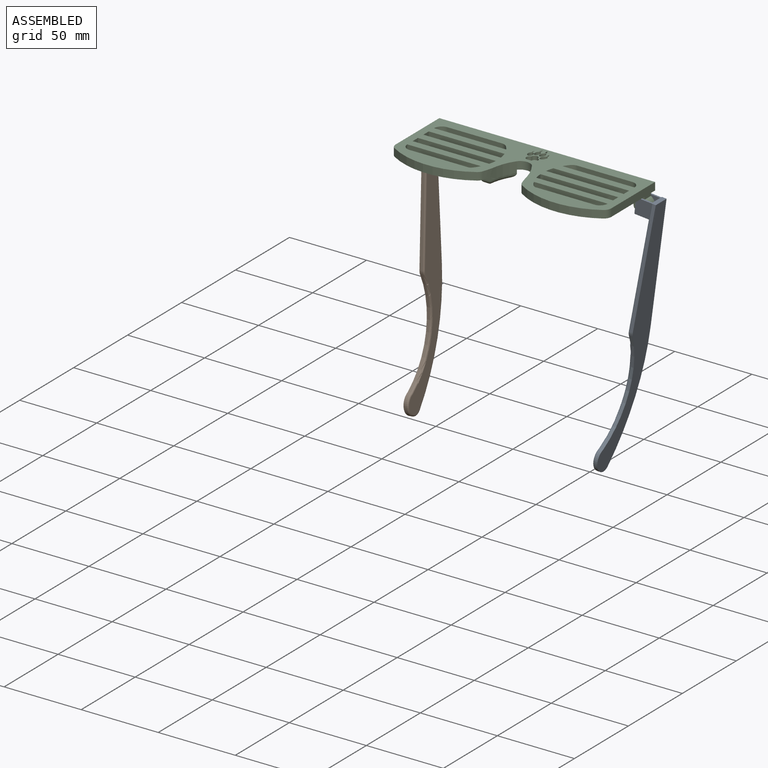
[diagram: assembled view]
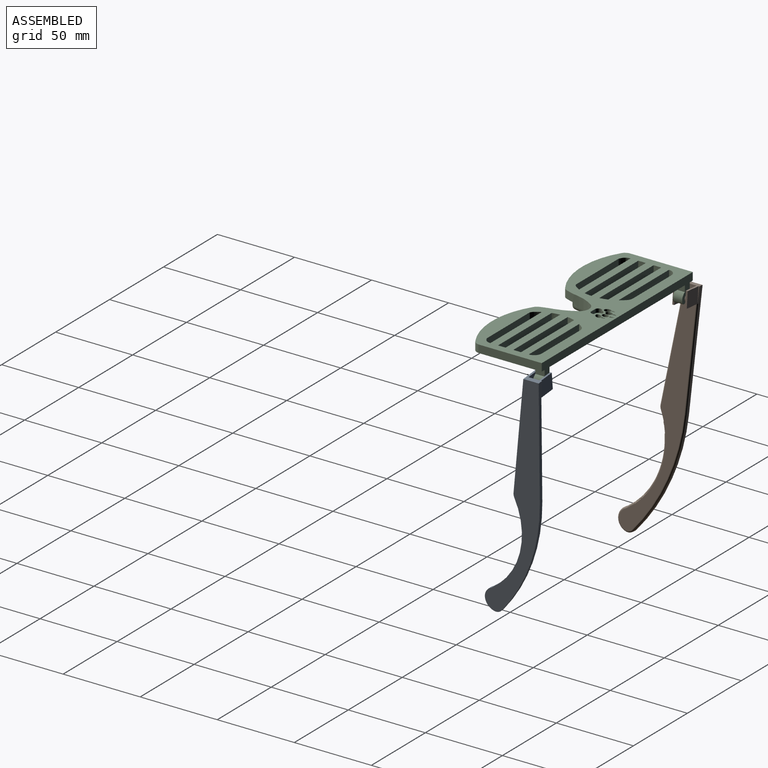
[diagram: assembled view, second angle]
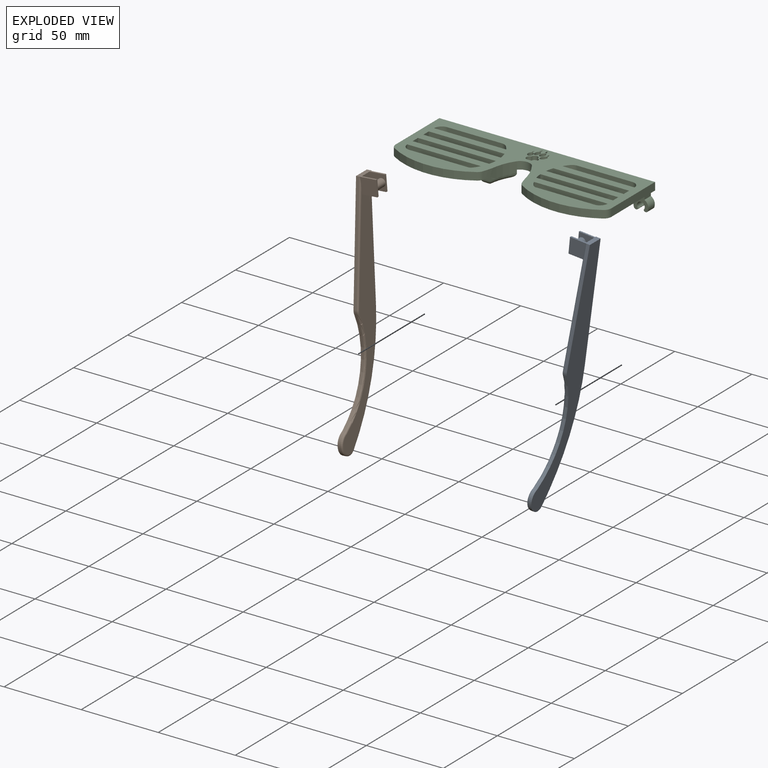
[diagram: exploded view]
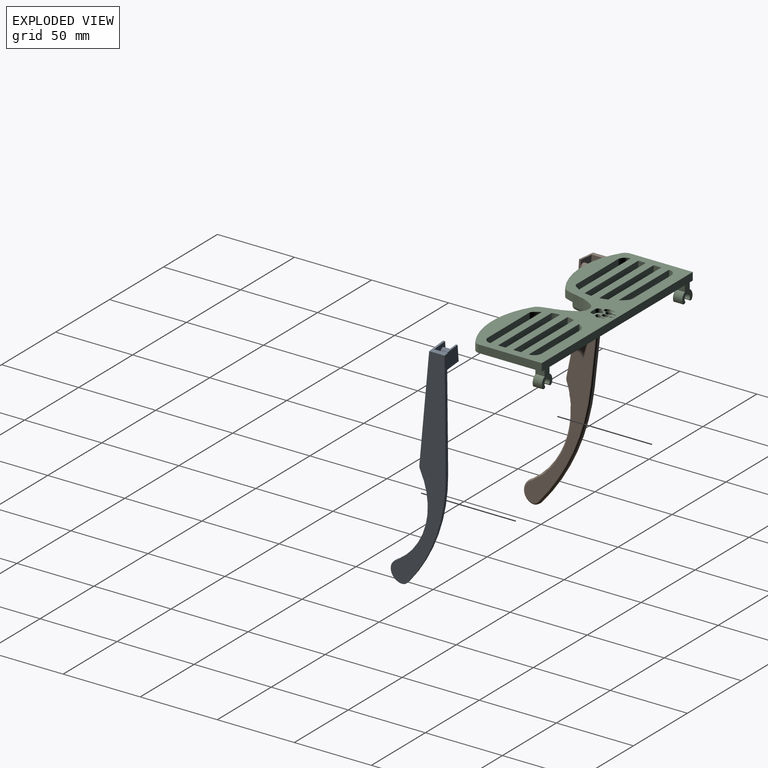
[diagram: exploded view, second angle]
ASSEMBLY  parts=3 mates=2
PART A: 37 faces, bbox 155x51x13 mm
  f0: plane 149.14x42mm, normal (0,0,-1), area 1534mm2, adj f3,f22,f23,f25,f26,f27,f29,f30
  f1: plane 10.01x0.58mm, normal (0,0,-1), area 2.9mm2, adj f3,f9,f21
  f2: plane 1.29x0.04mm, normal (1,0,0), area 0.1mm2, adj f10,f15,f18,f19
  f3: plane 13x10mm, normal (-1,0,0), area 54.2mm2, adj f0,f1,f4,f5,f9,f10,f14,f15
  f4: plane 10.01x0.58mm, normal (0,0,1), area 2.9mm2, adj f3,f9,f14
  f5: plane 72.9x11.29mm, normal (-0.15,-0.99,0), area 147.5mm2, adj f3,f10,f11,f29
  f6: cylinder r=50.09mm len=60.28mm, axis (0,0,-1), area 136.5mm2, adj f10,f11,f13,f31
  f7: cylinder r=7.35mm len=13.77mm, axis (0,0,-1), area 36mm2, adj f10,f12,f13,f33
  f8: cylinder r=123.65mm len=73.53mm, axis (0,0,-1), area 161.5mm2, adj f9,f10,f12,f35
  f9: plane 74.88x4.33mm, normal (0.06,1,0), area 160mm2, adj f1,f3,f4,f8,f10,f23,f36
  f10: plane 150.14x44.01mm, normal (0,0,1), area 1844mm2, adj f2,f3,f5,f6,f7,f8,f9,f11
  f11: cylinder r=5mm len=2.63mm, axis (0,0,-1), area 5.4mm2, adj f5,f6,f10,f30
  f12: cylinder r=5mm len=5.09mm, axis (0,0,-1), area 11.2mm2, adj f7,f8,f10,f34
  f13: cylinder r=5mm len=2mm, axis (0,0,-1), area 1.6mm2, adj f6,f7,f10,f32
  f14: plane 10.01x0.04mm, normal (0,1,0), area 0.4mm2, adj f3,f4,f16,f20
  f15: plane 10.01x0.04mm, normal (0,-1,0), area 0.4mm2, adj f2,f3,f10,f19
  f16: plane 1.13x0.04mm, normal (1,0,0), area 0mm2, adj f10,f14,f17,f20
  f17: plane 10.01x0.04mm, normal (0,-1,0), area 0.4mm2, adj f3,f10,f16,f20
  f18: plane 10.01x0.04mm, normal (0,1,0), area 0.4mm2, adj f2,f3,f10,f19
  f19: plane 10.01x1.29mm, normal (0,0,1), area 12.9mm2, adj f2,f3,f15,f18
  f20: plane 10.01x1.13mm, normal (0,0,1), area 11.3mm2, adj f3,f14,f16,f17
  f21: plane 10.01x9.96mm, normal (0,1,0), area 99.7mm2, adj f1,f3,f23,f24
  f22: plane 10.01x9.96mm, normal (0,-1,0), area 80.1mm2, adj f0,f3,f23,f24,f28
  f23: plane 10.96x1.13mm, normal (1,0,0), area 11.5mm2, adj f0,f9,f21,f22,f24,f36
  f24: plane 10.01x9.42mm, normal (0,0,-1), area 25.8mm2, adj f3,f21,f22,f23,f25,f26,f27,f28
  f25: plane 10.01x9.96mm, normal (0,1,0), area 80.1mm2, adj f0,f3,f24,f27,f28
  f26: plane 10.96x10.01mm, normal (0,-1,0), area 101.1mm2, adj f0,f3,f24,f27,f29
  f27: plane 9.96x1.29mm, normal (1,0,0), area 12.8mm2, adj f0,f24,f25,f26
  f28: cylinder r=2.5mm len=7mm, axis (0,-1,0), area 108.4mm2, adj f22,f24,f25
  f29: cylinder r=1mm len=73.05mm, axis (0.99,-0.15,0), area 112.2mm2, adj f0,f5,f26,f30
  f30: torus R=4mm, axis (0,0,1), area 3.9mm2, adj f0,f11,f29,f31
  f31: torus R=51.09mm, axis (0,0,1), area 108mm2, adj f0,f6,f30,f32
  f32: torus R=6mm, axis (0,0,1), area 1.3mm2, adj f0,f13,f31,f33
  f33: torus R=6.35mm, axis (0,0,1), area 26.8mm2, adj f0,f7,f32,f34
  f34: torus R=4mm, axis (0,0,1), area 8.2mm2, adj f0,f12,f33,f35
  f35: torus R=122.65mm, axis (0,0,1), area 126.4mm2, adj f0,f8,f34,f36
  f36: cylinder r=1mm len=64.92mm, axis (-1,0.06,0), area 102mm2, adj f0,f9,f23,f35
PART B: 28 faces, bbox 155x51x13 mm
  f0: plane 11x1.19mm, normal (1,0,0), area 12.2mm2, adj f7,f8,f13,f16,f18,f20
  f1: plane 13x10mm, normal (-1,0,0), area 54.2mm2, adj f2,f3,f7,f8,f9,f13,f14,f16
  f2: plane 10.02x0.58mm, normal (0,0,1), area 2.9mm2, adj f1,f7,f13
  f3: plane 72.9x11.29mm, normal (-0.15,-0.99,0), area 147.5mm2, adj f1,f9,f10,f21
  f4: cylinder r=50.09mm len=60.28mm, axis (0,0,-1), area 136.5mm2, adj f9,f10,f12,f25
  f5: cylinder r=7.35mm len=13.77mm, axis (0,0,-1), area 36mm2, adj f9,f11,f12,f26
  f6: cylinder r=123.65mm len=73.53mm, axis (0,0,-1), area 161.5mm2, adj f7,f9,f11,f22
  f7: plane 74.88x4.33mm, normal (0.06,1,0), area 160mm2, adj f0,f1,f2,f6,f9,f20
  f8: plane 149.14x42mm, normal (0,0,1), area 1534mm2, adj f0,f1,f14,f15,f17,f18,f20,f21
  f9: plane 150.14x44.58mm, normal (0,0,-1), area 1871.1mm2, adj f1,f3,f4,f5,f6,f7,f10,f11
  f10: cylinder r=5mm len=2.63mm, axis (0,0,-1), area 5.4mm2, adj f3,f4,f9,f23
  f11: cylinder r=5mm len=5.09mm, axis (0,0,-1), area 11.2mm2, adj f5,f6,f9,f24
  f12: cylinder r=5mm len=2mm, axis (0,0,-1), area 1.6mm2, adj f4,f5,f9,f27
  f13: plane 10.02x10mm, normal (0,1,0), area 100.2mm2, adj f0,f1,f2,f16
  f14: plane 11x10.02mm, normal (0,-1,0), area 101.6mm2, adj f1,f8,f15,f16,f21
  f15: plane 10x1.23mm, normal (1,0,0), area 12.3mm2, adj f8,f14,f16,f17
  f16: plane 10.02x9.42mm, normal (0,0,1), area 25.7mm2, adj f0,f1,f13,f14,f15,f17,f18,f19
  f17: plane 10.02x10mm, normal (0,1,0), area 80.6mm2, adj f1,f8,f15,f16,f19
  f18: plane 10.02x10mm, normal (0,-1,0), area 80.6mm2, adj f0,f1,f8,f16,f19
  f19: cylinder r=2.5mm len=7mm, axis (0,-1,0), area 108.5mm2, adj f16,f17,f18
  f20: cylinder r=1mm len=64.91mm, axis (1,-0.06,0), area 102mm2, adj f0,f7,f8,f22
  f21: cylinder r=1mm len=73.05mm, axis (-0.99,0.15,0), area 112.2mm2, adj f3,f8,f14,f23
  f22: torus R=122.65mm, axis (0,0,1), area 126.4mm2, adj f6,f8,f20,f24
  f23: torus R=4mm, axis (0,0,1), area 3.9mm2, adj f8,f10,f21,f25
  f24: torus R=4mm, axis (0,0,1), area 8.2mm2, adj f8,f11,f22,f26
  f25: torus R=51.09mm, axis (0,0,1), area 108mm2, adj f4,f8,f23,f27
  f26: torus R=6.35mm, axis (0,0,1), area 26.8mm2, adj f5,f8,f24,f27
  f27: torus R=6mm, axis (0,0,1), area 1.3mm2, adj f8,f12,f25,f26
PART C: 125 faces, bbox 140x52x15.9 mm
  f0: cylinder r=5mm len=5mm, axis (0,0,-1), area 12.2mm2, adj f7,f10,f12,f124
  f1: cylinder r=50mm len=5mm, axis (0,0,1), area 5.6mm2, adj f10,f12,f88,f123
  f2: plane 5x4.91mm, normal (-1,0,0), area 24.6mm2, adj f10,f12,f118,f122
  f3: cylinder r=25mm len=19.92mm, axis (0,0,1), area 127.2mm2, adj f10,f12,f92,f93,f101,f103,f105,f114
  f4: plane 5x4.91mm, normal (1,0,0), area 24.6mm2, adj f10,f12,f116,f120
  f5: cylinder r=25mm len=23.39mm, axis (0,0,1), area 147.9mm2, adj f10,f12,f89,f90,f95,f96,f98,f108
  f6: plane 5x5mm, normal (-1,0,0), area 25mm2, adj f10,f12,f114,f117
  f7: cylinder r=25mm len=5mm, axis (0,0,1), area 20.7mm2, adj f0,f10,f12,f121
  f8: plane 5x5mm, normal (1,0,0), area 25mm2, adj f10,f12,f112,f115
  f9: cylinder r=25mm len=5mm, axis (0,0,1), area 20.9mm2, adj f10,f12,f110,f113
  f10: plane 140x52.04mm, normal (0,0,-1), area 5011mm2, adj f0,f1,f2,f3,f4,f5,f6,f7
  f11: cylinder r=50.26mm len=9.2mm, axis (0,0,1), area 56.7mm2, adj f10,f12,f76,f79,f90,f100
  f12: plane 140x52.04mm, normal (0,0,1), area 4310.9mm2, adj f0,f1,f2,f3,f4,f5,f6,f7
  f13: cylinder r=50.26mm len=7.63mm, axis (0,0,1), area 45.4mm2, adj f10,f12,f75,f77,f93,f106
  f14: cylinder r=2.5mm len=6mm, axis (0,1,0), area 71.7mm2, adj f20,f21,f30,f34
  f15: cylinder r=4.83mm len=6.11mm, axis (0,1,0), area 42.8mm2, adj f16,f20,f30,f34
  f16: plane 6x0.05mm, normal (0,0,-1), area 0.3mm2, adj f15,f17,f30,f34
  f17: plane 6x3.89mm, normal (1,0,0), area 23.4mm2, adj f10,f16,f30,f34
  f18: cylinder r=4.83mm len=6.11mm, axis (0,1,0), area 42.8mm2, adj f19,f21,f30,f34
  f19: plane 6x3.89mm, normal (-1,0,0), area 23.4mm2, adj f10,f18,f30,f34
  f20: cylinder r=1.5mm len=6mm, axis (0,1,0), area 21.2mm2, adj f14,f15,f30,f34
  f21: cylinder r=1.5mm len=6mm, axis (0,1,0), area 21.2mm2, adj f14,f18,f30,f34
  f22: cylinder r=2.5mm len=6mm, axis (0,1,0), area 71mm2, adj f28,f29,f30,f33
  f23: cylinder r=4.78mm len=6.01mm, axis (0,1,0), area 42.2mm2, adj f24,f29,f30,f33
  f24: plane 6x0.11mm, normal (0,0,-1), area 0.6mm2, adj f23,f25,f30,f33
  f25: plane 6x3.99mm, normal (1,0,0), area 23.9mm2, adj f10,f24,f30,f33
  f26: cylinder r=4.78mm len=6.01mm, axis (0,1,0), area 42.2mm2, adj f27,f28,f30,f33
  f27: plane 6x3.99mm, normal (-1,0,0), area 23.9mm2, adj f10,f26,f30,f33
  f28: cylinder r=1.5mm len=6mm, axis (0,1,0), area 19.9mm2, adj f22,f26,f30,f33
  f29: cylinder r=1.5mm len=6mm, axis (0,1,0), area 19.9mm2, adj f22,f23,f30,f33
  f30: plane 140x15.92mm, normal (0,1,0), area 809.9mm2, adj f10,f12,f14,f15,f16,f17,f18,f19
  f31: plane 40.51x5mm, normal (-1,0,0), area 202.5mm2, adj f10,f12,f30,f80
  f32: plane 40.51x5mm, normal (1,0,0), area 202.5mm2, adj f10,f12,f30,f78
  f33: plane 10.83x9.56mm, normal (0,-1,0), area 54.3mm2, adj f10,f22,f23,f24,f25,f26,f27,f28
  f34: plane 10.92x9.67mm, normal (0,-1,0), area 55.6mm2, adj f10,f14,f15,f16,f17,f18,f19,f20
  f35: cylinder r=2.24mm len=4.27mm, axis (0,0,1), area 14.2mm2, adj f12,f36,f38,f39
  f36: cylinder r=2.16mm len=4.31mm, axis (0,0,1), area 16.6mm2, adj f12,f35,f37,f39
  f37: cylinder r=2.17mm len=4.27mm, axis (0,0,1), area 15.3mm2, adj f12,f36,f38,f39
  f38: plane 4.24x2.5mm, normal (0,1,0), area 10.6mm2, adj f12,f35,f37,f39
  f39: plane 7.66x6.35mm, normal (0,0,1), area 36mm2, adj f35,f36,f37,f38
  f40: cylinder r=0.96mm len=2.5mm, axis (0,0,1), area 2.7mm2, adj f12,f41,f43,f44
  f41: cylinder r=5.16mm len=2.5mm, axis (0,0,1), area 5.5mm2, adj f12,f40,f42,f44
  f42: cylinder r=0.18mm len=2.5mm, axis (0,0,1), area 1.4mm2, adj f12,f41,f43,f44
  f43: cylinder r=6.23mm len=2.5mm, axis (0,0,1), area 4.8mm2, adj f12,f40,f42,f44
  f44: plane 2.28x1.01mm, normal (0,0,1), area 1.4mm2, adj f40,f41,f42,f43
  f45: cylinder r=4.12mm len=2.5mm, axis (0,0,1), area 6.7mm2, adj f12,f46,f48,f49
  f46: cylinder r=0.15mm len=2.5mm, axis (0,0,1), area 1mm2, adj f12,f45,f47,f49
  f47: cylinder r=8.79mm len=2.5mm, axis (0,0,1), area 6mm2, adj f12,f46,f48,f49
  f48: cylinder r=1.15mm len=2.5mm, axis (0,0,1), area 3.2mm2, adj f12,f45,f47,f49
  f49: plane 2.6x1.33mm, normal (0,0,1), area 2mm2, adj f45,f46,f47,f48
  f50: cylinder r=0.12mm len=2.5mm, axis (0,0,1), area 1.1mm2, adj f12,f51,f53,f54
  f51: cylinder r=3.89mm len=2.5mm, axis (0,0,1), area 5mm2, adj f12,f50,f52,f54
  f52: cylinder r=0.96mm len=2.5mm, axis (0,0,1), area 1.8mm2, adj f12,f51,f53,f54
  f53: cylinder r=4.89mm len=2.5mm, axis (0,0,1), area 4.5mm2, adj f12,f50,f52,f54
  f54: plane 2.08x0.73mm, normal (0,0,1), area 0.9mm2, adj f50,f51,f52,f53
  f55: cylinder r=7.07mm len=2.5mm, axis (0,0,1), area 5.1mm2, adj f12,f56,f58,f59
  f56: cylinder r=0.16mm len=2.5mm, axis (0,0,1), area 1mm2, adj f12,f55,f57,f59
  f57: cylinder r=3.58mm len=2.5mm, axis (0,0,1), area 6mm2, adj f12,f56,f58,f59
  f58: cylinder r=0.92mm len=2.5mm, axis (0,0,1), area 2.7mm2, adj f12,f55,f57,f59
  f59: plane 2.28x1.03mm, normal (0,0,1), area 1.5mm2, adj f55,f56,f57,f58
  f60: extruded ~4.41x3.31mm, area 30.5mm2, adj f12,f61
  f61: plane 4.42x3.31mm, normal (0,0,1), area 11.4mm2, adj f60
  f62: extruded ~4.35x3.42mm, area 30.5mm2, adj f12,f63
  f63: plane 4.37x3.42mm, normal (0,0,1), area 11.2mm2, adj f62
  f64: extruded ~4.62x3.08mm, area 30.5mm2, adj f12,f65
  f65: plane 4.62x3.08mm, normal (0,0,1), area 11.2mm2, adj f64
  f66: extruded ~4.4x3.12mm, area 29.8mm2, adj f12,f67
  f67: plane 4.42x3.12mm, normal (0,0,1), area 10.7mm2, adj f66
  f68: cylinder r=50mm len=52.92mm, axis (0,0,1), area 278.9mm2, adj f10,f12,f77,f78
  f69: cylinder r=50mm len=52.88mm, axis (0,0,1), area 278.6mm2, adj f10,f12,f79,f80
  f70: cylinder r=30mm len=11.47mm, axis (0,0,1), area 88.6mm2, adj f12,f73,f76,f89,f97
  f71: cylinder r=6.37mm len=7.48mm, axis (0,0,1), area 40mm2, adj f10,f12,f73,f74
  f72: cylinder r=41.89mm len=12.9mm, axis (0,0,1), area 99.4mm2, adj f12,f74,f75,f92,f102
  f73: cylinder r=5mm len=5mm, axis (0,0,-1), area 6.6mm2, adj f10,f12,f70,f71
  f74: cylinder r=5mm len=5mm, axis (0,0,-1), area 10mm2, adj f10,f12,f71,f72
  f75: cylinder r=5mm len=7mm, axis (0,0,1), area 1.9mm2, adj f12,f13,f72,f104
  f76: cylinder r=5mm len=7mm, axis (0,0,1), area 1.5mm2, adj f11,f12,f70,f99
  f77: cylinder r=5mm len=5mm, axis (0,0,1), area 16.1mm2, adj f10,f12,f13,f68
  f78: cylinder r=5mm len=5mm, axis (0,0,1), area 25.6mm2, adj f10,f12,f32,f68
  f79: cylinder r=5mm len=5mm, axis (0,0,1), area 16.2mm2, adj f10,f11,f12,f69
  f80: cylinder r=5mm len=5mm, axis (0,0,1), area 25.6mm2, adj f10,f12,f31,f69
  f81: cylinder r=50mm len=5mm, axis (0,0,1), area 5.6mm2, adj f10,f12,f85,f124
  f82: plane 5x0mm, normal (-1,0,0), area 0mm2, adj f10,f12,f85,f121
  f83: plane 35.54x5mm, normal (0,-1,0), area 177.7mm2, adj f10,f12,f86,f110
  f84: plane 35.5x5mm, normal (0,-1,0), area 177.5mm2, adj f10,f12,f87,f109
  f85: cylinder r=5mm len=5mm, axis (0,0,1), area 28.5mm2, adj f10,f12,f81,f82
  f86: cylinder r=5mm len=5mm, axis (0,0,1), area 39.3mm2, adj f10,f12,f83,f113
  f87: cylinder r=5mm len=5mm, axis (0,0,1), area 39.3mm2, adj f10,f12,f84,f111
  f88: cylinder r=5mm len=5mm, axis (0,0,1), area 28.5mm2, adj f1,f10,f12,f119
  f89: plane 9.72x2mm, normal (0,1,0), area 19.4mm2, adj f5,f10,f70,f95
  f90: plane 6.07x2mm, normal (0,-1,0), area 12.1mm2, adj f5,f10,f11,f98
  f91: plane 10.06x3.99mm, normal (0,0,-1), area 21.4mm2, adj f95,f96,f97,f98,f99,f100
  f92: plane 10.08x2mm, normal (-0.01,1,0), area 20.2mm2, adj f3,f10,f72,f101
  f93: plane 6.07x2mm, normal (0,-1,0), area 12.1mm2, adj f3,f10,f13,f105
  f94: plane 10.04x4.47mm, normal (0,0,-1), area 24.2mm2, adj f101,f102,f103,f104,f105,f106
  f95: cylinder r=3mm len=9.72mm, axis (-1,0,0), area 35.6mm2, adj f5,f89,f91,f96,f97
  f96: cylinder r=3mm len=12.82mm, axis (0,-1,0), area 6.9mm2, adj f5,f91,f95,f98
  f97: torus R=33mm, axis (0,0,-1), area 49.2mm2, adj f70,f91,f95,f99
  f98: cylinder r=3mm len=6.07mm, axis (1,0,0), area 19.4mm2, adj f5,f90,f91,f96,f100
  f99: torus R=8mm, axis (0,0,-1), area 1.3mm2, adj f76,f91,f97,f100
  f100: torus R=47.26mm, axis (0,0,-1), area 15mm2, adj f11,f91,f98,f99
  f101: cylinder r=3mm len=10.11mm, axis (-1,-0.01,0), area 37.6mm2, adj f3,f92,f94,f102,f103
  f102: torus R=44.89mm, axis (0,0,-1), area 56.4mm2, adj f72,f94,f101,f104
  f103: cylinder r=3mm len=12.8mm, axis (0,1,0), area 6.8mm2, adj f3,f94,f101,f105
  f104: torus R=8mm, axis (0,0,-1), area 1.5mm2, adj f75,f94,f102,f106
  f105: cylinder r=3mm len=6.07mm, axis (1,0,0), area 19.4mm2, adj f3,f93,f94,f103,f106
  f106: torus R=47.26mm, axis (0,0,-1), area 9.3mm2, adj f13,f94,f104,f105
  f107: cylinder r=25mm len=5mm, axis (0,0,1), area 20.9mm2, adj f10,f12,f109,f111
  f108: cylinder r=5mm len=5mm, axis (0,0,1), area 12.2mm2, adj f5,f10,f12,f123
  f109: cylinder r=5mm len=5mm, axis (0,0,1), area 21mm2, adj f10,f12,f84,f107
  f110: cylinder r=5mm len=5mm, axis (0,0,1), area 21mm2, adj f9,f10,f12,f83
  f111: plane 46.74x5mm, normal (0,1,0), area 233.7mm2, adj f10,f12,f87,f107
  f112: plane 49.15x5mm, normal (0,-1,0), area 245.8mm2, adj f5,f8,f10,f12
  f113: plane 46.77x5mm, normal (0,1,0), area 233.9mm2, adj f9,f10,f12,f86
  f114: plane 49.19x5mm, normal (0,-1,0), area 246mm2, adj f3,f6,f10,f12
  f115: plane 50.36x5mm, normal (0,1,0), area 251.8mm2, adj f5,f8,f10,f12
  f116: plane 50.52x5mm, normal (0,-1,0), area 252.6mm2, adj f4,f5,f10,f12
  f117: plane 50.4x5mm, normal (0,1,0), area 252mm2, adj f3,f6,f10,f12
  f118: plane 50.56x5mm, normal (0,-1,0), area 252.8mm2, adj f2,f3,f10,f12
  f119: plane 47.73x5mm, normal (0,-1,0), area 238.7mm2, adj f5,f10,f12,f88
  f120: plane 49.7x5mm, normal (0,1,0), area 248.5mm2, adj f4,f5,f10,f12
  f121: plane 47.77x5mm, normal (0,-1,0), area 238.9mm2, adj f7,f10,f12,f82
  f122: plane 49.74x5mm, normal (0,1,0), area 248.7mm2, adj f2,f3,f10,f12
  f123: plane 39.71x5mm, normal (0,1,0), area 198.6mm2, adj f1,f10,f12,f108
  f124: plane 39.77x5mm, normal (0,1,0), area 198.8mm2, adj f0,f10,f12,f81
PLACE A rot(axis=(0,1,0),95.5deg) t=(-32.79,53.41,-138.58)mm
PLACE B rot(axis=(0,1,0),85.1deg) t=(-173.13,53.48,-139.05)mm
PLACE C t=(-36.66,8.81,-88.8)mm fixed
MATE revolute B.f19 <-> C.f22  axis (0,-1,0) through (-166.21,30.62,-97.01)mm
MATE revolute A.f28 <-> C.f14  axis (0,-1,0) through (-36.25,30.62,-96.97)mm
